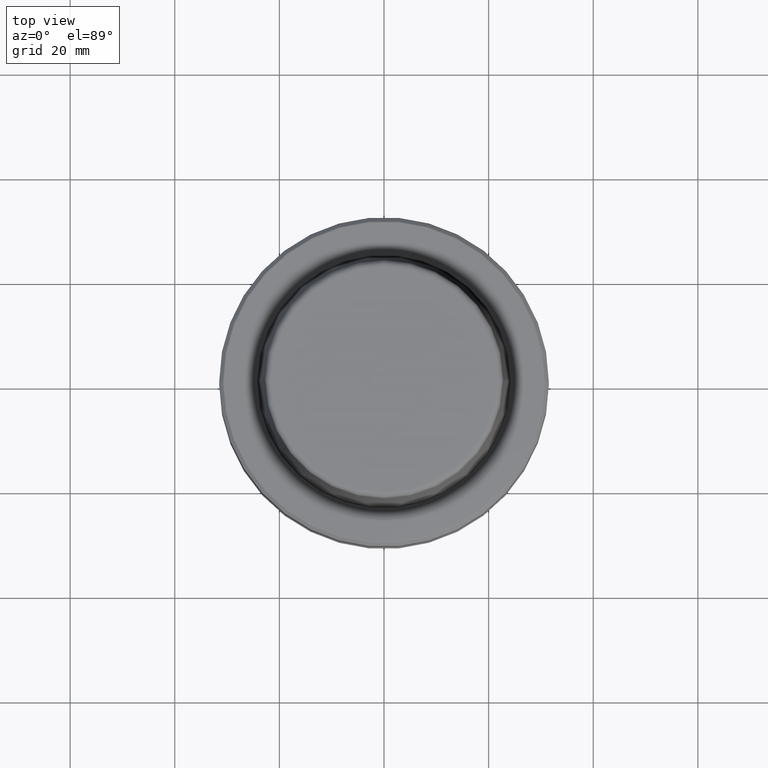
[diagram: clean part render]
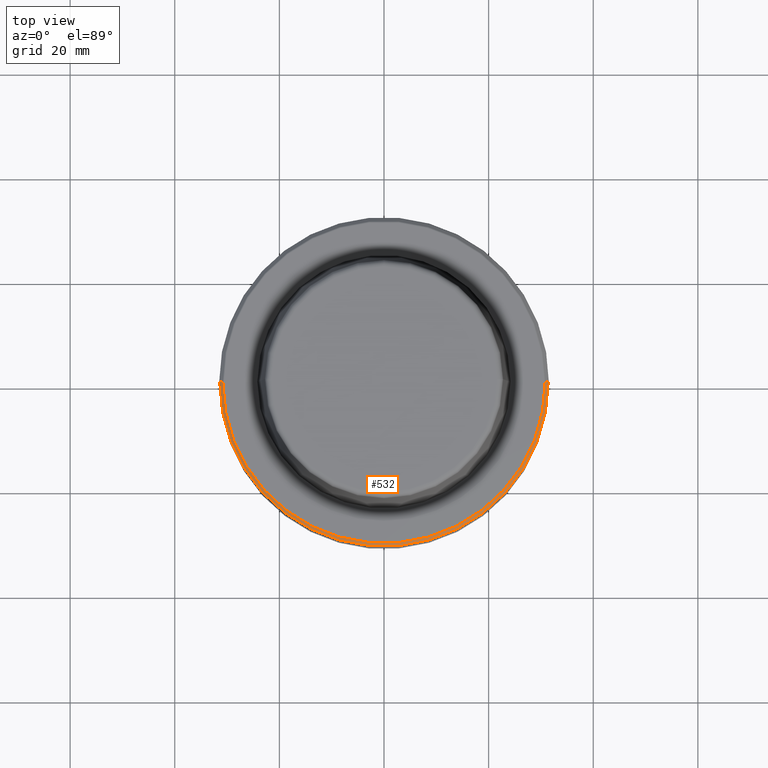
[diagram: same view with one face highlighted and labeled with its STEP entity id]
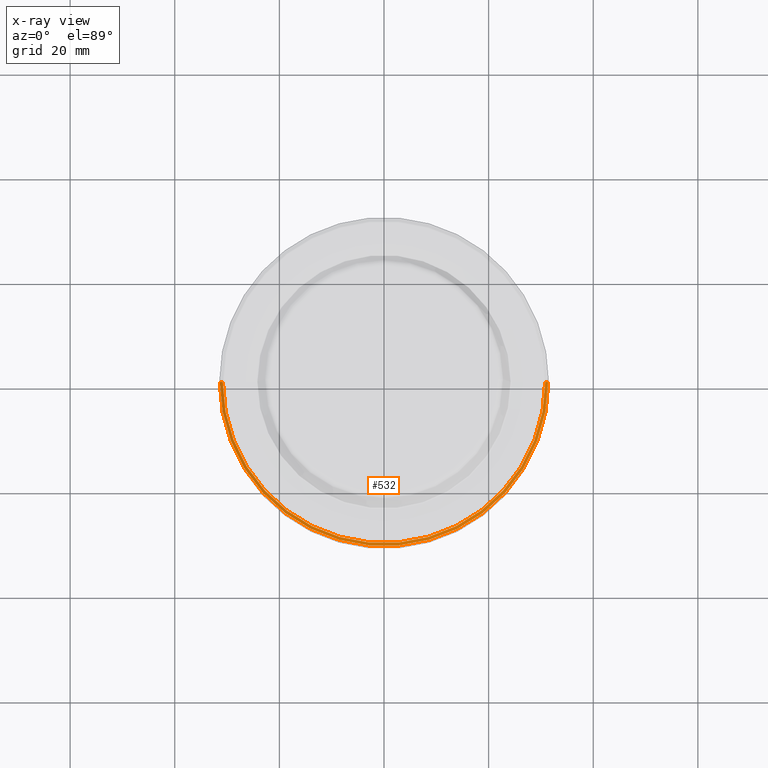
[diagram: x-ray of the same camera — body ghosted, the highlighted face saturated]
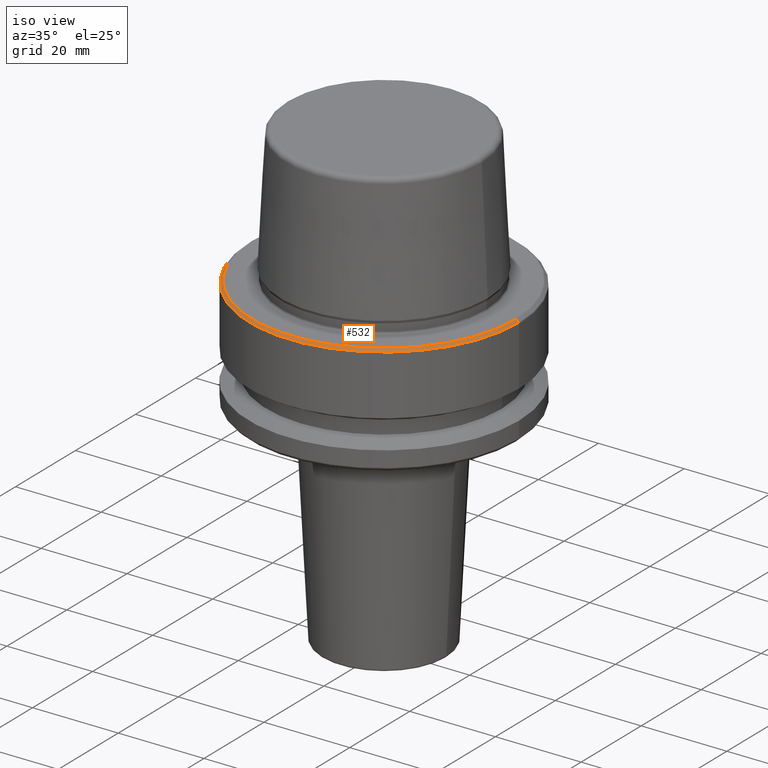
[diagram: same view with one face highlighted and labeled with its STEP entity id]
A machine part, top view. The second image highlights one B-rep face of the part: STEP entity #532.
The next image is the same camera in x-ray: the body ghosted, the highlighted face saturated — about 0% of this face is hidden behind the body in this view.
A second angle (iso view) of the same face is appended — the face is thin or edge-on in the first view.
In plain terms, the highlighted conical surface has half-angle 45 deg.
Its self-contained STEP definition (entity closure, byte-faithful):
#13 = CARTESIAN_POINT ( 'NONE',  ( 31.38284271247461600, 3.843289787597687600E-015, -0.6828427124746239100 ) ) ;
#17 = DIRECTION ( 'NONE',  ( 0.7071067811865453500, 8.659560562354907000E-017, -0.7071067811865496800 ) ) ;
#41 = DIRECTION ( 'NONE',  ( -1.000000000000000000, 0.0000000000000000000, 0.0000000000000000000 ) ) ;
#76 = EDGE_LOOP ( 'NONE', ( #188, #337, #500, #731 ) ) ;
#104 = VERTEX_POINT ( 'NONE', #219 ) ;
#161 = VERTEX_POINT ( 'NONE', #531 ) ;
#170 = VECTOR ( 'NONE', #17, 1000.000000000000000 ) ;
#187 = DIRECTION ( 'NONE',  ( -0.0000000000000000000, -0.0000000000000000000, 1.000000000000000000 ) ) ;
#188 = ORIENTED_EDGE ( 'NONE', *, *, #835, .F. ) ;
#219 = CARTESIAN_POINT ( 'NONE',  ( -30.81715728752537900, 0.0000000000000000000, -0.1171572875253851200 ) ) ;
#233 = CARTESIAN_POINT ( 'NONE',  ( 0.0000000000000000000, 0.0000000000000000000, -0.6828427124746239100 ) ) ;
#275 = EDGE_CURVE ( 'NONE', #104, #161, #632, .T. ) ;
#284 = DIRECTION ( 'NONE',  ( 1.000000000000000000, 0.0000000000000000000, 0.0000000000000000000 ) ) ;
#295 = VERTEX_POINT ( 'NONE', #1107 ) ;
#337 = ORIENTED_EDGE ( 'NONE', *, *, #983, .F. ) ;
#356 = CIRCLE ( 'NONE', #1090, 30.81715728752537900 ) ;
#497 = CARTESIAN_POINT ( 'NONE',  ( 0.0000000000000000000, 0.0000000000000000000, -0.6828427124746239100 ) ) ;
#500 = ORIENTED_EDGE ( 'NONE', *, *, #275, .T. ) ;
#518 = DIRECTION ( 'NONE',  ( -0.7071067811865453500, 0.0000000000000000000, -0.7071067811865496800 ) ) ;
#531 = CARTESIAN_POINT ( 'NONE',  ( -31.38284271247461600, 3.850463602455925200E-015, -0.6828427124746239100 ) ) ;
#532 = ADVANCED_FACE ( 'NONE', ( #836 ), #1060, .T. ) ;
#619 = CARTESIAN_POINT ( 'NONE',  ( -31.38284271247461600, 0.0000000000000000000, -0.6828427124746239100 ) ) ;
#632 = LINE ( 'NONE', #619, #1216 ) ;
#665 = AXIS2_PLACEMENT_3D ( 'NONE', #233, #1074, #41 ) ;
#731 = ORIENTED_EDGE ( 'NONE', *, *, #744, .T. ) ;
#744 = EDGE_CURVE ( 'NONE', #161, #1235, #1003, .T. ) ;
#762 = DIRECTION ( 'NONE',  ( -0.0000000000000000000, -0.0000000000000000000, 1.000000000000000000 ) ) ;
#767 = CARTESIAN_POINT ( 'NONE',  ( 31.38284271247461600, 0.0000000000000000000, -0.6828427124746239100 ) ) ;
#835 = EDGE_CURVE ( 'NONE', #295, #1235, #1157, .T. ) ;
#836 = FACE_OUTER_BOUND ( 'NONE', #76, .T. ) ;
#863 = CARTESIAN_POINT ( 'NONE',  ( 0.0000000000000000000, 0.0000000000000000000, -0.1171572875253851200 ) ) ;
#962 = DIRECTION ( 'NONE',  ( 1.000000000000000000, 0.0000000000000000000, 0.0000000000000000000 ) ) ;
#983 = EDGE_CURVE ( 'NONE', #104, #295, #356, .T. ) ;
#988 = AXIS2_PLACEMENT_3D ( 'NONE', #497, #762, #962 ) ;
#1003 = CIRCLE ( 'NONE', #988, 31.38284271247461600 ) ;
#1060 = CONICAL_SURFACE ( 'NONE', #665, 31.38284271247461600, 0.7853981633974452800 ) ;
#1074 = DIRECTION ( 'NONE',  ( 0.0000000000000000000, 0.0000000000000000000, -1.000000000000000000 ) ) ;
#1090 = AXIS2_PLACEMENT_3D ( 'NONE', #863, #187, #284 ) ;
#1107 = CARTESIAN_POINT ( 'NONE',  ( 30.81715728752537900, 3.808651545348268500E-015, -0.1171572875253851200 ) ) ;
#1157 = LINE ( 'NONE', #13, #170 ) ;
#1216 = VECTOR ( 'NONE', #518, 1000.000000000000000 ) ;
#1235 = VERTEX_POINT ( 'NONE', #767 ) ;